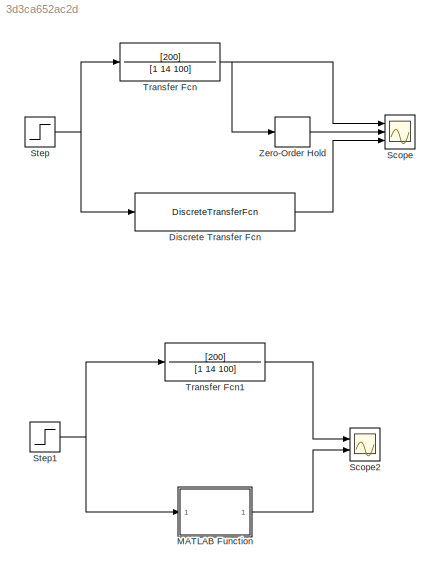
MODEL slx_3d3ca652ac2d
KIND model
CONFIG AbsTol = auto
CONFIG EnableMultiTasking = off
CONFIG FixedStep = auto
CONFIG MaxStep = auto
CONFIG MinStep = auto
CONFIG RelTol = 1e-3
CONFIG SampleTimeConstraint = Unconstrained
CONFIG SolverName = VariableStepAuto
CONFIG StartTime = 0.0
CONFIG StopTime = 1
BLOCK [DiscreteTransferFcn] Discrete Transfer Fcn
  Denominator = [1 -1.45 0.5712]
  InputPortMap = u0
  Numerator = [0.1322 0.1096]
  Ports = [1, 1]
  SampleTime = 0.04
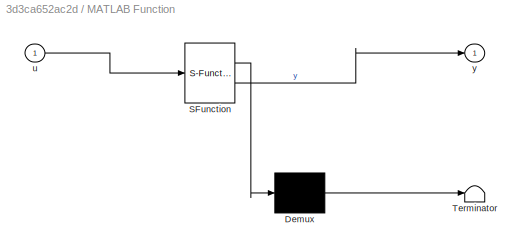
BLOCK [SubSystem] MATLAB Function
  ErrorFcn = Stateflow.Translate.translate
  PermitHierarchicalResolution = ExplicitOnly
  Ports = [1, 1]
  RequestExecContextInheritance = off
  SFBlockType = MATLAB Function
  SystemSampleTime = 0.04
  TreatAsAtomicUnit = on
BLOCK [Demux] MATLAB Function/ Demux 
  Outputs = 1
  Ports = [1, 1]
BLOCK [S-Function] MATLAB Function/ SFunction 
  EnableBusSupport = on
  FunctionName = sf_sfun
  PortCounts = [1 2]
  Ports = [1, 2]
  SFcnIsStateOwnerBlock = off
  SFunctionDeploymentMode = off
  Tag = Stateflow S-Function 2
BLOCK [Terminator] MATLAB Function/ Terminator 
BLOCK [Inport] MATLAB Function/u
BLOCK [Outport] MATLAB Function/y
BLOCK [Scope] Scope
  Floating = off
  NumInputPorts = 3
  Ports = [3]
  ScopeSpecificationString = Simulink.scopes.TimeScopeBlockCfg('CurrentConfiguration', extmgr.ConfigurationSet(extmgr.Configuration('Core','General UI',true),extmgr.Configuration('Core','Source UI',true),extmgr.Configuration('Sources','WiredSimulink',true),extmgr.Configuration('Visuals','Time Domain',true,'SerializedDisplays',{struct('MinYLimReal','-0.2615','MaxYLimReal','2.35347','YLabelReal','','MinYLimMag','0.00000','MaxYL...<+1401ch>
BLOCK [Scope] Scope2
  Floating = off
  NumInputPorts = 2
  Ports = [2]
  ScopeSpecificationString = Simulink.scopes.TimeScopeBlockCfg('CurrentConfiguration', extmgr.ConfigurationSet(extmgr.Configuration('Core','General UI',true),extmgr.Configuration('Core','Source UI',true),extmgr.Configuration('Sources','WiredSimulink',true,'DataLoggingVariableName','ScopeData2'),extmgr.Configuration('Visuals','Time Domain',true,'SerializedDisplays',{struct('MinYLimReal','-0.2615','MaxYLimReal','2.35347','YLabe...<+1440ch>
BLOCK [Step] Step
  SampleTime = 0
  Time = 0
BLOCK [Step] Step1
  SampleTime = 0
  Time = 0
BLOCK [TransferFcn] Transfer Fcn
  Denominator = [1 14 100]
  Numerator = [200]
BLOCK [TransferFcn] Transfer Fcn1
  Denominator = [1 14 100]
  Numerator = [200]
BLOCK [ZeroOrderHold] Zero-Order Hold
  SampleTime = 0.04
LINE Discrete Transfer Fcn:1 -> Scope:3
LINE MATLAB Function:1 -> Scope2:2
NET Step1:1 -> MATLAB Function:1, Transfer Fcn1:1
NET Step:1 -> Discrete Transfer Fcn:1, Transfer Fcn:1
LINE Transfer Fcn1:1 -> Scope2:1
NET Transfer Fcn:1 -> Scope:1, Zero-Order Hold:1
LINE Zero-Order Hold:1 -> Scope:2
note: NET lines group one-source signal fan-out (src -> all destinations, sorted); 1:1 wires keep LINE
CHART MATLAB Function states=1 transitions=1
  STATE_LABEL 'eML_blk_kernel()'
  STATE_LABEL 'SCRIPT:\nfunction y = fcn(u)\n    persistent u0 u1 y0 y1 u2 y2\n    \n    if isempty(u0)\n        u1=0;u0=0;y1=0;y0=0;u2=0;y2=0;\n    end\n    \n    u2=u1;u1=u0;y2=y1;y1=y0;\n    u0=u;\n    y = 0.1322*u1 + 0.1096*u2 + 1.45*y1 - 0.5712*y2;\n    y0=y;'
CHART  states=0 transitions=0
